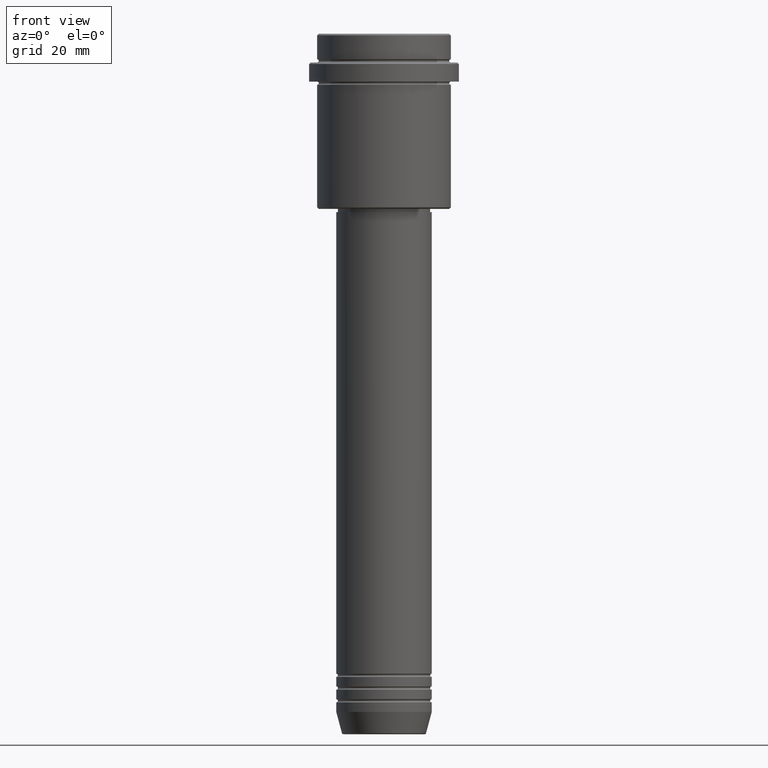
[diagram: clean part render]
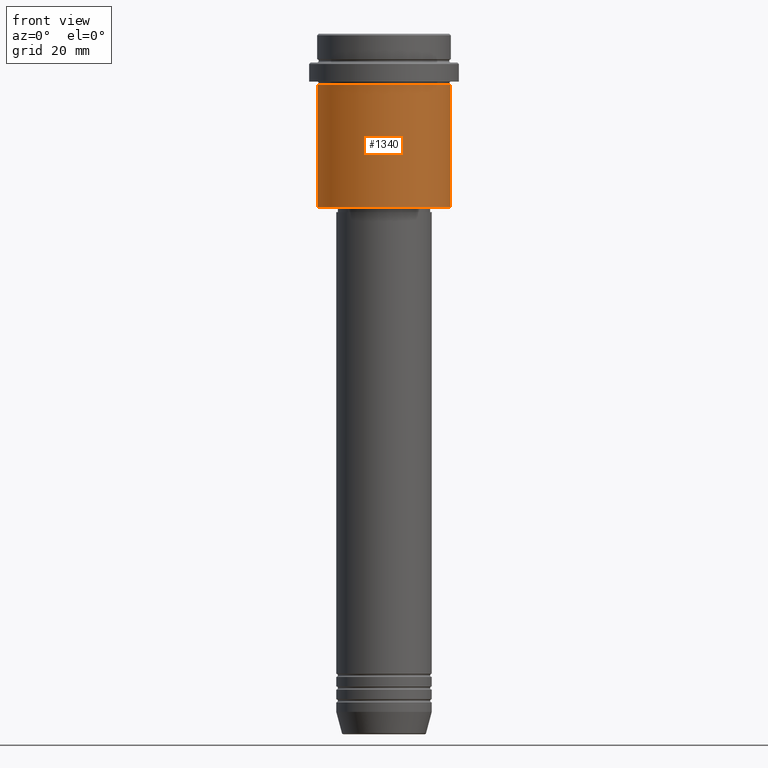
[diagram: same view with one face highlighted and labeled with its STEP entity id]
A machine part, front view. The second image highlights one B-rep face of the part: STEP entity #1340.
In plain terms, the highlighted cylindrical surface (partial cylindrical patch) has radius 21 mm, axis along (-0, -0, 1).
Its self-contained STEP definition (entity closure, byte-faithful):
#46 = ORIENTED_EDGE ( 'NONE', *, *, #202, .F. ) ;
#53 = CARTESIAN_POINT ( 'NONE',  ( 0.000000000000000000, 0.000000000000000000, 0.000000000000000000 ) ) ;
#59 = EDGE_LOOP ( 'NONE', ( #46, #287, #655, #685 ) ) ;
#152 = CARTESIAN_POINT ( 'NONE',  ( 21.00000000000000000, 0.000000000000000000, -16.00000000000000355 ) ) ;
#155 = CARTESIAN_POINT ( 'NONE',  ( 21.00000000000000000, 0.000000000000000000, -54.49999999999999289 ) ) ;
#179 = EDGE_CURVE ( 'NONE', #1304, #480, #423, .T. ) ;
#202 = EDGE_CURVE ( 'NONE', #355, #1284, #1306, .T. ) ;
#224 = CARTESIAN_POINT ( 'NONE',  ( 0.000000000000000000, 0.000000000000000000, -16.00000000000000355 ) ) ;
#241 = CIRCLE ( 'NONE', #326, 21.00000000000000000 ) ;
#248 = EDGE_CURVE ( 'NONE', #1284, #480, #729, .T. ) ;
#262 = FACE_OUTER_BOUND ( 'NONE', #59, .T. ) ;
#287 = ORIENTED_EDGE ( 'NONE', *, *, #1164, .T. ) ;
#300 = CARTESIAN_POINT ( 'NONE',  ( -21.00000000000000000, 2.571758278209441661E-15, 0.000000000000000000 ) ) ;
#308 = AXIS2_PLACEMENT_3D ( 'NONE', #53, #1133, #579 ) ;
#319 = CARTESIAN_POINT ( 'NONE',  ( 21.00000000000000000, 0.000000000000000000, 0.000000000000000000 ) ) ;
#326 = AXIS2_PLACEMENT_3D ( 'NONE', #337, #883, #981 ) ;
#337 = CARTESIAN_POINT ( 'NONE',  ( 0.000000000000000000, 0.000000000000000000, -54.49999999999999289 ) ) ;
#355 = VERTEX_POINT ( 'NONE', #1333 ) ;
#418 = DIRECTION ( 'NONE',  ( -0.000000000000000000, -0.000000000000000000, 1.000000000000000000 ) ) ;
#423 = LINE ( 'NONE', #319, #986 ) ;
#480 = VERTEX_POINT ( 'NONE', #152 ) ;
#579 = DIRECTION ( 'NONE',  ( 1.000000000000000000, 0.000000000000000000, 0.000000000000000000 ) ) ;
#655 = ORIENTED_EDGE ( 'NONE', *, *, #179, .T. ) ;
#677 = CYLINDRICAL_SURFACE ( 'NONE', #308, 21.00000000000000000 ) ;
#685 = ORIENTED_EDGE ( 'NONE', *, *, #248, .F. ) ;
#729 = CIRCLE ( 'NONE', #1283, 21.00000000000000000 ) ;
#749 = DIRECTION ( 'NONE',  ( -0.000000000000000000, -0.000000000000000000, 1.000000000000000000 ) ) ;
#883 = DIRECTION ( 'NONE',  ( -0.000000000000000000, -0.000000000000000000, 1.000000000000000000 ) ) ;
#919 = VECTOR ( 'NONE', #749, 1000.000000000000000 ) ;
#981 = DIRECTION ( 'NONE',  ( -1.000000000000000000, 0.000000000000000000, 0.000000000000000000 ) ) ;
#986 = VECTOR ( 'NONE', #418, 1000.000000000000000 ) ;
#1086 = CARTESIAN_POINT ( 'NONE',  ( -21.00000000000000000, 2.571758278209441661E-15, -16.00000000000000355 ) ) ;
#1133 = DIRECTION ( 'NONE',  ( -0.000000000000000000, -0.000000000000000000, 1.000000000000000000 ) ) ;
#1164 = EDGE_CURVE ( 'NONE', #355, #1304, #241, .T. ) ;
#1283 = AXIS2_PLACEMENT_3D ( 'NONE', #224, #1390, #1288 ) ;
#1284 = VERTEX_POINT ( 'NONE', #1086 ) ;
#1288 = DIRECTION ( 'NONE',  ( 1.000000000000000000, 0.000000000000000000, 0.000000000000000000 ) ) ;
#1304 = VERTEX_POINT ( 'NONE', #155 ) ;
#1306 = LINE ( 'NONE', #300, #919 ) ;
#1333 = CARTESIAN_POINT ( 'NONE',  ( -21.00000000000000000, 2.571758278209441661E-15, -54.49999999999999289 ) ) ;
#1340 = ADVANCED_FACE ( 'NONE', ( #262 ), #677, .T. ) ;
#1390 = DIRECTION ( 'NONE',  ( -0.000000000000000000, -0.000000000000000000, 1.000000000000000000 ) ) ;